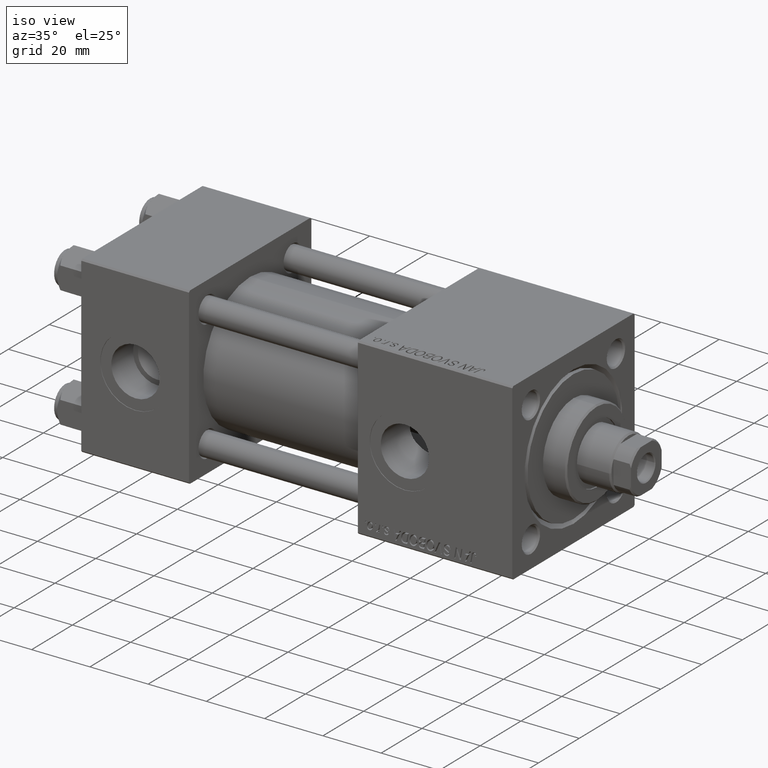
[diagram: clean part render]
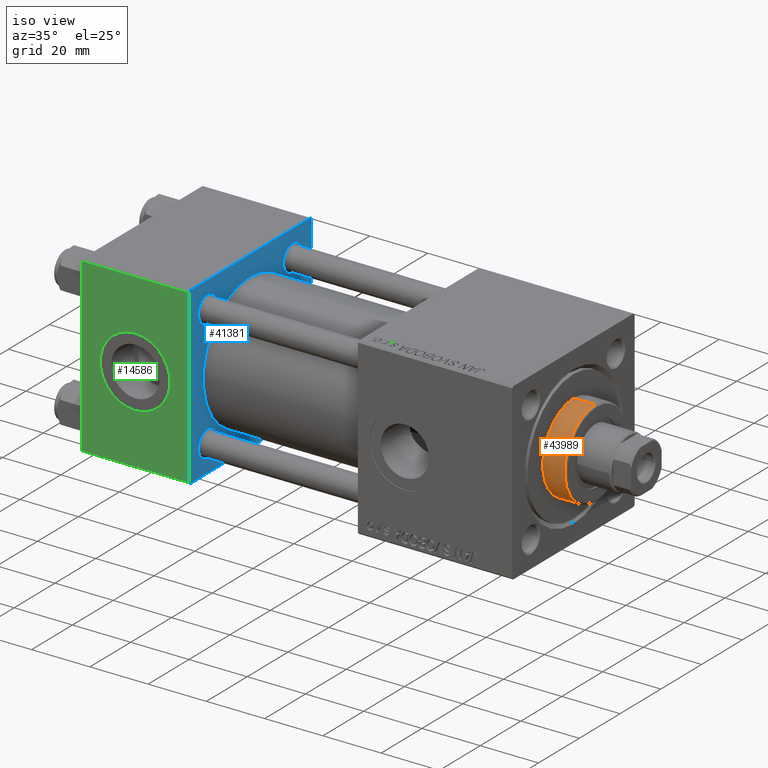
[diagram: same view with three faces highlighted in distinct colors, each labeled with its STEP entity id]
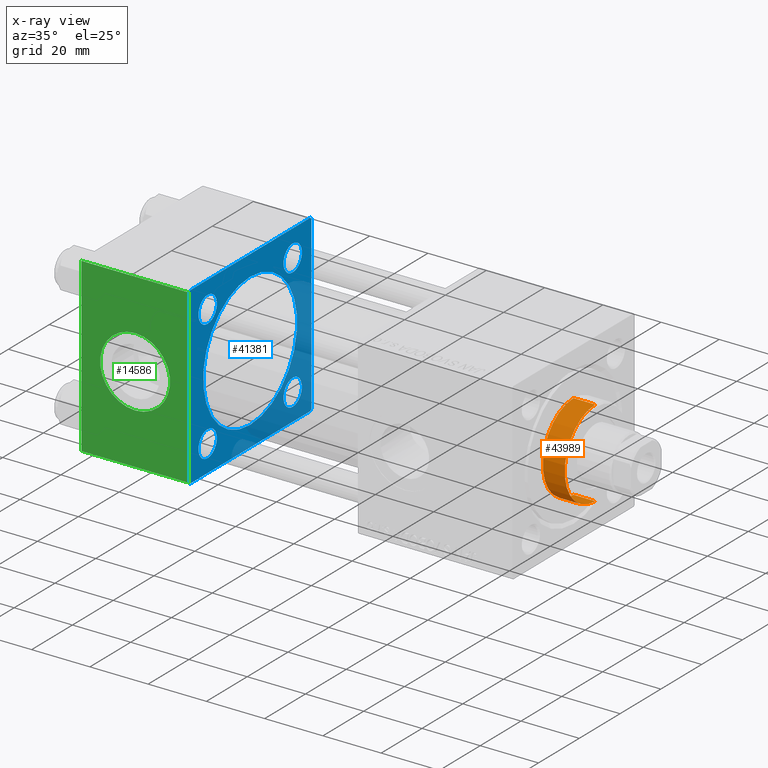
[diagram: x-ray of the same camera — body ghosted, the three highlighted faces saturated]
A machine part, iso view with three faces highlighted in distinct colors.
The next image is the same camera in x-ray (body ghosted, the three faces saturated) — at least one of them is partly hidden behind the body in this view.
Their STEP definitions:

[orange] entity #43989 — the highlighted cylindrical surface (partial cylindrical patch) has radius 15 mm, axis along (-1, -0, -0).
#5159 = ORIENTED_EDGE ( 'NONE', *, *, #34701, .T. ) ;
#5534 = DIRECTION ( 'NONE',  ( 1.000000000000000000, 0.000000000000000000, 0.000000000000000000 ) ) ;
#6461 = AXIS2_PLACEMENT_3D ( 'NONE', #26149, #22452, #5534 ) ;
#8455 = CYLINDRICAL_SURFACE ( 'NONE', #38484, 15.00000000000000000 ) ;
#8713 = CARTESIAN_POINT ( 'NONE',  ( 0.000000000000000000, 0.000000000000000000, 36.69999999999999574 ) ) ;
#9543 = CARTESIAN_POINT ( 'NONE',  ( 15.00000000000000000, 1.836970198721029589E-15, 28.69999999999999929 ) ) ;
#9994 = CARTESIAN_POINT ( 'NONE',  ( 15.00000000000000000, 1.836970198721029589E-15, 36.69999999999999574 ) ) ;
#10774 = EDGE_CURVE ( 'NONE', #49499, #18868, #15731, .T. ) ;
#12237 = VERTEX_POINT ( 'NONE', #9543 ) ;
#14642 = CARTESIAN_POINT ( 'NONE',  ( 15.00000000000000000, 1.836970198721029589E-15, 36.20000000000000284 ) ) ;
#15270 = CARTESIAN_POINT ( 'NONE',  ( -15.00000000000000000, 0.000000000000000000, 36.20000000000000284 ) ) ;
#15731 = CIRCLE ( 'NONE', #6461, 15.00000000000000000 ) ;
#18402 = AXIS2_PLACEMENT_3D ( 'NONE', #39881, #32478, #43847 ) ;
#18868 = VERTEX_POINT ( 'NONE', #15270 ) ;
#19827 = VERTEX_POINT ( 'NONE', #31088 ) ;
#22452 = DIRECTION ( 'NONE',  ( 0.000000000000000000, 0.000000000000000000, -1.000000000000000000 ) ) ;
#24162 = CARTESIAN_POINT ( 'NONE',  ( -15.00000000000000000, 0.000000000000000000, 36.69999999999999574 ) ) ;
#24311 = FACE_OUTER_BOUND ( 'NONE', #27323, .T. ) ;
#24875 = VECTOR ( 'NONE', #38258, 1000.000000000000000 ) ;
#26149 = CARTESIAN_POINT ( 'NONE',  ( 0.000000000000000000, 0.000000000000000000, 36.20000000000000284 ) ) ;
#26747 = ORIENTED_EDGE ( 'NONE', *, *, #39630, .T. ) ;
#27323 = EDGE_LOOP ( 'NONE', ( #27512, #33562, #5159, #26747 ) ) ;
#27512 = ORIENTED_EDGE ( 'NONE', *, *, #28566, .F. ) ;
#28499 = CIRCLE ( 'NONE', #18402, 15.00000000000000000 ) ;
#28566 = EDGE_CURVE ( 'NONE', #49499, #12237, #46193, .T. ) ;
#31088 = CARTESIAN_POINT ( 'NONE',  ( -15.00000000000000000, 0.000000000000000000, 28.69999999999999929 ) ) ;
#32478 = DIRECTION ( 'NONE',  ( 0.000000000000000000, 0.000000000000000000, 1.000000000000000000 ) ) ;
#33562 = ORIENTED_EDGE ( 'NONE', *, *, #10774, .T. ) ;
#34701 = EDGE_CURVE ( 'NONE', #18868, #19827, #35532, .T. ) ;
#35532 = LINE ( 'NONE', #24162, #51141 ) ;
#38258 = DIRECTION ( 'NONE',  ( -0.000000000000000000, -0.000000000000000000, -1.000000000000000000 ) ) ;
#38484 = AXIS2_PLACEMENT_3D ( 'NONE', #8713, #45186, #40680 ) ;
#39630 = EDGE_CURVE ( 'NONE', #19827, #12237, #28499, .T. ) ;
#39881 = CARTESIAN_POINT ( 'NONE',  ( 0.000000000000000000, 0.000000000000000000, 28.69999999999999929 ) ) ;
#40275 = DIRECTION ( 'NONE',  ( -0.000000000000000000, -0.000000000000000000, -1.000000000000000000 ) ) ;
#40680 = DIRECTION ( 'NONE',  ( -1.000000000000000000, 0.000000000000000000, 0.000000000000000000 ) ) ;
#43847 = DIRECTION ( 'NONE',  ( 1.000000000000000000, 0.000000000000000000, 0.000000000000000000 ) ) ;
#43989 = ADVANCED_FACE ( 'NONE', ( #24311 ), #8455, .T. ) ;
#45186 = DIRECTION ( 'NONE',  ( -0.000000000000000000, -0.000000000000000000, -1.000000000000000000 ) ) ;
#46193 = LINE ( 'NONE', #9994, #24875 ) ;
#49499 = VERTEX_POINT ( 'NONE', #14642 ) ;
#51141 = VECTOR ( 'NONE', #40275, 1000.000000000000000 ) ;

[blue] entity #41381 — the highlighted planar face has unit normal (-1, 0, 0).
#705 = AXIS2_PLACEMENT_3D ( 'NONE', #34534, #30572, #4347 ) ;
#792 = DIRECTION ( 'NONE',  ( 0.000000000000000000, -0.7071067811865474617, 0.7071067811865474617 ) ) ;
#861 = VERTEX_POINT ( 'NONE', #25249 ) ;
#1451 = EDGE_CURVE ( 'NONE', #35372, #46133, #8768, .T. ) ;
#2092 = DIRECTION ( 'NONE',  ( 0.000000000000000000, 0.000000000000000000, 1.000000000000000000 ) ) ;
#2317 = CIRCLE ( 'NONE', #45332, 4.499999999999990230 ) ;
#2363 = DIRECTION ( 'NONE',  ( -1.000000000000000000, 0.000000000000000000, -0.000000000000000000 ) ) ;
#2472 = EDGE_CURVE ( 'NONE', #51079, #31661, #4240, .T. ) ;
#2794 = FACE_BOUND ( 'NONE', #35306, .T. ) ;
#3104 = CARTESIAN_POINT ( 'NONE',  ( 37.00000000000000000, 20.84999999999999787, -20.85000000000000142 ) ) ;
#3356 = DIRECTION ( 'NONE',  ( 0.000000000000000000, 0.000000000000000000, 1.000000000000000000 ) ) ;
#3729 = VECTOR ( 'NONE', #33744, 1000.000000000000114 ) ;
#4240 = LINE ( 'NONE', #29368, #13914 ) ;
#4347 = DIRECTION ( 'NONE',  ( -0.000000000000000000, 0.000000000000000000, 1.000000000000000000 ) ) ;
#4578 = DIRECTION ( 'NONE',  ( 0.000000000000000000, 0.000000000000000000, 1.000000000000000000 ) ) ;
#4599 = ORIENTED_EDGE ( 'NONE', *, *, #6355, .T. ) ;
#4735 = DIRECTION ( 'NONE',  ( -1.000000000000000000, 0.000000000000000000, -0.000000000000000000 ) ) ;
#6250 = FACE_BOUND ( 'NONE', #46061, .T. ) ;
#6355 = EDGE_CURVE ( 'NONE', #861, #29100, #35133, .T. ) ;
#6396 = ORIENTED_EDGE ( 'NONE', *, *, #32046, .T. ) ;
#6427 = CARTESIAN_POINT ( 'NONE',  ( 37.00000000000000000, -2.602085213965210642E-15, 23.00000000000000000 ) ) ;
#6619 = CARTESIAN_POINT ( 'NONE',  ( 37.00000000000000000, 29.99999999999999289, 30.00000000000000000 ) ) ;
#6685 = ORIENTED_EDGE ( 'NONE', *, *, #40083, .T. ) ;
#7260 = LINE ( 'NONE', #40003, #8228 ) ;
#7325 = AXIS2_PLACEMENT_3D ( 'NONE', #19575, #15611, #31728 ) ;
#7370 = EDGE_CURVE ( 'NONE', #34411, #51186, #10700, .T. ) ;
#8228 = VECTOR ( 'NONE', #44508, 999.9999999999998863 ) ;
#8768 = CIRCLE ( 'NONE', #44211, 4.499999999999990230 ) ;
#8914 = EDGE_CURVE ( 'NONE', #29100, #861, #2317, .T. ) ;
#9154 = CARTESIAN_POINT ( 'NONE',  ( 37.00000000000000000, 29.99999999999999289, 29.50000000000000000 ) ) ;
#9379 = CARTESIAN_POINT ( 'NONE',  ( 37.00000000000000000, -20.84999999999999076, 20.85000000000000497 ) ) ;
#9383 = DIRECTION ( 'NONE',  ( -1.000000000000000000, 0.000000000000000000, -0.000000000000000000 ) ) ;
#9449 = ORIENTED_EDGE ( 'NONE', *, *, #12130, .T. ) ;
#10356 = EDGE_LOOP ( 'NONE', ( #46313, #11122 ) ) ;
#10448 = CARTESIAN_POINT ( 'NONE',  ( 37.00000000000000000, 20.84999999999999787, -16.35000000000001208 ) ) ;
#10700 = CIRCLE ( 'NONE', #7325, 4.499999999999990230 ) ;
#11122 = ORIENTED_EDGE ( 'NONE', *, *, #1451, .T. ) ;
#11125 = CARTESIAN_POINT ( 'NONE',  ( 37.00000000000000000, -29.49999999999998579, 29.99999999999999289 ) ) ;
#12062 = EDGE_CURVE ( 'NONE', #21166, #34025, #30168, .T. ) ;
#12130 = EDGE_CURVE ( 'NONE', #23942, #22399, #15902, .T. ) ;
#12232 = ORIENTED_EDGE ( 'NONE', *, *, #7370, .T. ) ;
#12410 = CARTESIAN_POINT ( 'NONE',  ( 37.00000000000000000, 20.84999999999999787, 16.35000000000001208 ) ) ;
#12870 = CARTESIAN_POINT ( 'NONE',  ( 37.00000000000000000, -29.50000000000001066, -30.00000000000000711 ) ) ;
#13024 = EDGE_CURVE ( 'NONE', #14418, #50597, #7260, .T. ) ;
#13045 = CARTESIAN_POINT ( 'NONE',  ( 37.00000000000000000, -20.84999999999999076, 25.34999999999999432 ) ) ;
#13411 = LINE ( 'NONE', #12870, #3729 ) ;
#13914 = VECTOR ( 'NONE', #792, 1000.000000000000114 ) ;
#14418 = VERTEX_POINT ( 'NONE', #29312 ) ;
#14591 = CARTESIAN_POINT ( 'NONE',  ( 37.00000000000000000, 2.146024240737012665E-16, -23.00000000000000000 ) ) ;
#14996 = AXIS2_PLACEMENT_3D ( 'NONE', #32807, #44958, #48930 ) ;
#15253 = EDGE_CURVE ( 'NONE', #34025, #21166, #22874, .T. ) ;
#15489 = ORIENTED_EDGE ( 'NONE', *, *, #40643, .T. ) ;
#15611 = DIRECTION ( 'NONE',  ( -1.000000000000000000, 0.000000000000000000, -0.000000000000000000 ) ) ;
#15804 = DIRECTION ( 'NONE',  ( 0.000000000000000000, -1.000000000000000000, -1.156482317317871725E-16 ) ) ;
#15855 = VECTOR ( 'NONE', #49009, 1000.000000000000000 ) ;
#15887 = VECTOR ( 'NONE', #49216, 1000.000000000000000 ) ;
#15902 = LINE ( 'NONE', #52102, #19216 ) ;
#16475 = ORIENTED_EDGE ( 'NONE', *, *, #38275, .T. ) ;
#17194 = ORIENTED_EDGE ( 'NONE', *, *, #12062, .F. ) ;
#17300 = DIRECTION ( 'NONE',  ( -1.000000000000000000, 0.000000000000000000, -0.000000000000000000 ) ) ;
#17371 = AXIS2_PLACEMENT_3D ( 'NONE', #33016, #4735, #37238 ) ;
#19216 = VECTOR ( 'NONE', #48662, 1000.000000000000114 ) ;
#19238 = DIRECTION ( 'NONE',  ( -1.000000000000000000, 0.000000000000000000, -0.000000000000000000 ) ) ;
#19454 = VERTEX_POINT ( 'NONE', #41992 ) ;
#19575 = CARTESIAN_POINT ( 'NONE',  ( 37.00000000000000000, 20.84999999999999787, -20.85000000000000142 ) ) ;
#20520 = CARTESIAN_POINT ( 'NONE',  ( 37.00000000000000000, 20.84999999999999787, -25.34999999999999076 ) ) ;
#20696 = CARTESIAN_POINT ( 'NONE',  ( 37.00000000000000000, -29.50000000000000000, -30.00000000000000711 ) ) ;
#21098 = CARTESIAN_POINT ( 'NONE',  ( 37.00000000000000000, -20.84999999999999076, -20.85000000000000497 ) ) ;
#21166 = VERTEX_POINT ( 'NONE', #14591 ) ;
#21890 = DIRECTION ( 'NONE',  ( 0.000000000000000000, 0.000000000000000000, 1.000000000000000000 ) ) ;
#22382 = FACE_OUTER_BOUND ( 'NONE', #41667, .T. ) ;
#22399 = VERTEX_POINT ( 'NONE', #30114 ) ;
#22874 = CIRCLE ( 'NONE', #30454, 23.00000000000000000 ) ;
#23114 = ORIENTED_EDGE ( 'NONE', *, *, #35463, .T. ) ;
#23483 = CIRCLE ( 'NONE', #30251, 4.499999999999990230 ) ;
#23540 = EDGE_CURVE ( 'NONE', #14418, #36841, #27702, .T. ) ;
#23942 = VERTEX_POINT ( 'NONE', #11125 ) ;
#24900 = CARTESIAN_POINT ( 'NONE',  ( 37.00000000000000000, 29.99999999999999289, 30.00000000000000000 ) ) ;
#25228 = LINE ( 'NONE', #45575, #15855 ) ;
#25249 = CARTESIAN_POINT ( 'NONE',  ( 37.00000000000000000, -20.84999999999999076, 16.35000000000001208 ) ) ;
#25506 = DIRECTION ( 'NONE',  ( 0.000000000000000000, 0.000000000000000000, 1.000000000000000000 ) ) ;
#25687 = EDGE_CURVE ( 'NONE', #46133, #35372, #30672, .T. ) ;
#26961 = CARTESIAN_POINT ( 'NONE',  ( 37.00000000000000000, 29.99999999999999289, -29.50000000000000000 ) ) ;
#27295 = AXIS2_PLACEMENT_3D ( 'NONE', #37797, #49950, #39278 ) ;
#27475 = CIRCLE ( 'NONE', #17371, 4.499999999999990230 ) ;
#27702 = LINE ( 'NONE', #36657, #50006 ) ;
#28221 = ORIENTED_EDGE ( 'NONE', *, *, #2472, .T. ) ;
#29100 = VERTEX_POINT ( 'NONE', #13045 ) ;
#29312 = CARTESIAN_POINT ( 'NONE',  ( 37.00000000000000000, 29.49999999999997868, -30.00000000000000000 ) ) ;
#29368 = CARTESIAN_POINT ( 'NONE',  ( 37.00000000000000000, 29.49999999999999289, 30.00000000000000000 ) ) ;
#29712 = CARTESIAN_POINT ( 'NONE',  ( 37.00000000000000000, -20.84999999999999076, -25.34999999999999432 ) ) ;
#30114 = CARTESIAN_POINT ( 'NONE',  ( 37.00000000000000000, -30.00000000000000000, 29.49999999999999289 ) ) ;
#30168 = CIRCLE ( 'NONE', #14996, 23.00000000000000000 ) ;
#30251 = AXIS2_PLACEMENT_3D ( 'NONE', #3104, #19238, #3356 ) ;
#30454 = AXIS2_PLACEMENT_3D ( 'NONE', #39988, #52158, #4578 ) ;
#30572 = DIRECTION ( 'NONE',  ( -1.000000000000000000, 0.000000000000000000, -0.000000000000000000 ) ) ;
#30672 = CIRCLE ( 'NONE', #27295, 4.499999999999990230 ) ;
#31112 = ORIENTED_EDGE ( 'NONE', *, *, #13024, .T. ) ;
#31227 = ORIENTED_EDGE ( 'NONE', *, *, #23540, .F. ) ;
#31661 = VERTEX_POINT ( 'NONE', #48608 ) ;
#31728 = DIRECTION ( 'NONE',  ( 0.000000000000000000, 0.000000000000000000, 1.000000000000000000 ) ) ;
#32046 = EDGE_CURVE ( 'NONE', #19454, #36841, #13411, .T. ) ;
#32126 = EDGE_LOOP ( 'NONE', ( #47870, #23114 ) ) ;
#32807 = CARTESIAN_POINT ( 'NONE',  ( 37.00000000000000000, -2.602085213965210642E-15, 0.000000000000000000 ) ) ;
#33016 = CARTESIAN_POINT ( 'NONE',  ( 37.00000000000000000, 20.84999999999999787, 20.85000000000000142 ) ) ;
#33139 = EDGE_CURVE ( 'NONE', #35536, #50976, #47655, .T. ) ;
#33349 = LINE ( 'NONE', #24900, #15887 ) ;
#33744 = DIRECTION ( 'NONE',  ( 0.000000000000000000, 0.7071067811865474617, -0.7071067811865474617 ) ) ;
#34025 = VERTEX_POINT ( 'NONE', #6427 ) ;
#34218 = EDGE_LOOP ( 'NONE', ( #12232, #6685 ) ) ;
#34411 = VERTEX_POINT ( 'NONE', #20520 ) ;
#34534 = CARTESIAN_POINT ( 'NONE',  ( 37.00000000000000000, 0.000000000000000000, 0.000000000000000000 ) ) ;
#34610 = CARTESIAN_POINT ( 'NONE',  ( 37.00000000000000000, -20.84999999999999076, 20.85000000000000497 ) ) ;
#34785 = FACE_BOUND ( 'NONE', #34218, .T. ) ;
#35133 = CIRCLE ( 'NONE', #45252, 4.499999999999990230 ) ;
#35207 = VECTOR ( 'NONE', #50757, 1000.000000000000000 ) ;
#35306 = EDGE_LOOP ( 'NONE', ( #4599, #49742 ) ) ;
#35372 = VERTEX_POINT ( 'NONE', #52049 ) ;
#35463 = EDGE_CURVE ( 'NONE', #50976, #35536, #27475, .T. ) ;
#35536 = VERTEX_POINT ( 'NONE', #12410 ) ;
#35648 = LINE ( 'NONE', #6619, #35207 ) ;
#36657 = CARTESIAN_POINT ( 'NONE',  ( 37.00000000000000000, 29.99999999999999289, -30.00000000000000000 ) ) ;
#36841 = VERTEX_POINT ( 'NONE', #20696 ) ;
#37238 = DIRECTION ( 'NONE',  ( 0.000000000000000000, 0.000000000000000000, 1.000000000000000000 ) ) ;
#37458 = ORIENTED_EDGE ( 'NONE', *, *, #15253, .F. ) ;
#37797 = CARTESIAN_POINT ( 'NONE',  ( 37.00000000000000000, -20.84999999999999076, -20.85000000000000497 ) ) ;
#38275 = EDGE_CURVE ( 'NONE', #31661, #23942, #35648, .T. ) ;
#38782 = CARTESIAN_POINT ( 'NONE',  ( 37.00000000000000000, 20.84999999999999787, 25.34999999999999076 ) ) ;
#39278 = DIRECTION ( 'NONE',  ( 0.000000000000000000, 0.000000000000000000, 1.000000000000000000 ) ) ;
#39988 = CARTESIAN_POINT ( 'NONE',  ( 37.00000000000000000, -2.602085213965210642E-15, 0.000000000000000000 ) ) ;
#40003 = CARTESIAN_POINT ( 'NONE',  ( 37.00000000000000000, 29.99999999999999289, -29.50000000000000000 ) ) ;
#40083 = EDGE_CURVE ( 'NONE', #51186, #34411, #23483, .T. ) ;
#40643 = EDGE_CURVE ( 'NONE', #22399, #19454, #25228, .T. ) ;
#41381 = ADVANCED_FACE ( 'NONE', ( #42444, #34785, #2794, #46681, #6250, #22382 ), #50906, .F. ) ;
#41667 = EDGE_LOOP ( 'NONE', ( #31227, #31112, #52074, #28221, #16475, #9449, #15489, #6396 ) ) ;
#41840 = EDGE_CURVE ( 'NONE', #51079, #50597, #33349, .T. ) ;
#41992 = CARTESIAN_POINT ( 'NONE',  ( 37.00000000000000000, -30.00000000000000000, -29.50000000000001776 ) ) ;
#42444 = FACE_BOUND ( 'NONE', #10356, .T. ) ;
#44211 = AXIS2_PLACEMENT_3D ( 'NONE', #21098, #45915, #21890 ) ;
#44508 = DIRECTION ( 'NONE',  ( -0.000000000000000000, 0.7071067811865574537, 0.7071067811865376918 ) ) ;
#44958 = DIRECTION ( 'NONE',  ( 1.000000000000000000, -0.000000000000000000, 0.000000000000000000 ) ) ;
#45252 = AXIS2_PLACEMENT_3D ( 'NONE', #34610, #2363, #2092 ) ;
#45321 = DIRECTION ( 'NONE',  ( 0.000000000000000000, 0.000000000000000000, 1.000000000000000000 ) ) ;
#45332 = AXIS2_PLACEMENT_3D ( 'NONE', #9379, #17300, #45321 ) ;
#45575 = CARTESIAN_POINT ( 'NONE',  ( 37.00000000000000000, -30.00000000000000000, 29.99999999999999289 ) ) ;
#45915 = DIRECTION ( 'NONE',  ( -1.000000000000000000, 0.000000000000000000, -0.000000000000000000 ) ) ;
#46061 = EDGE_LOOP ( 'NONE', ( #37458, #17194 ) ) ;
#46133 = VERTEX_POINT ( 'NONE', #29712 ) ;
#46313 = ORIENTED_EDGE ( 'NONE', *, *, #25687, .T. ) ;
#46681 = FACE_BOUND ( 'NONE', #32126, .T. ) ;
#47655 = CIRCLE ( 'NONE', #51868, 4.499999999999990230 ) ;
#47870 = ORIENTED_EDGE ( 'NONE', *, *, #33139, .T. ) ;
#48608 = CARTESIAN_POINT ( 'NONE',  ( 37.00000000000000000, 29.49999999999999289, 30.00000000000000000 ) ) ;
#48662 = DIRECTION ( 'NONE',  ( -0.000000000000000000, -0.7071067811865474617, -0.7071067811865474617 ) ) ;
#48930 = DIRECTION ( 'NONE',  ( 0.000000000000000000, 0.000000000000000000, 1.000000000000000000 ) ) ;
#49009 = DIRECTION ( 'NONE',  ( 0.000000000000000000, 0.000000000000000000, -1.000000000000000000 ) ) ;
#49027 = CARTESIAN_POINT ( 'NONE',  ( 37.00000000000000000, 20.84999999999999787, 20.85000000000000142 ) ) ;
#49216 = DIRECTION ( 'NONE',  ( 0.000000000000000000, 0.000000000000000000, -1.000000000000000000 ) ) ;
#49742 = ORIENTED_EDGE ( 'NONE', *, *, #8914, .T. ) ;
#49950 = DIRECTION ( 'NONE',  ( -1.000000000000000000, 0.000000000000000000, -0.000000000000000000 ) ) ;
#50006 = VECTOR ( 'NONE', #15804, 1000.000000000000000 ) ;
#50597 = VERTEX_POINT ( 'NONE', #26961 ) ;
#50757 = DIRECTION ( 'NONE',  ( 0.000000000000000000, -1.000000000000000000, -1.156482317317871725E-16 ) ) ;
#50906 = PLANE ( 'NONE',  #705 ) ;
#50976 = VERTEX_POINT ( 'NONE', #38782 ) ;
#51079 = VERTEX_POINT ( 'NONE', #9154 ) ;
#51186 = VERTEX_POINT ( 'NONE', #10448 ) ;
#51868 = AXIS2_PLACEMENT_3D ( 'NONE', #49027, #9383, #25506 ) ;
#52049 = CARTESIAN_POINT ( 'NONE',  ( 37.00000000000000000, -20.84999999999999076, -16.35000000000001208 ) ) ;
#52074 = ORIENTED_EDGE ( 'NONE', *, *, #41840, .F. ) ;
#52102 = CARTESIAN_POINT ( 'NONE',  ( 37.00000000000000000, -30.00000000000000000, 29.49999999999999289 ) ) ;
#52158 = DIRECTION ( 'NONE',  ( 1.000000000000000000, -0.000000000000000000, 0.000000000000000000 ) ) ;

[green] entity #14586 — the highlighted planar face has unit normal (0, 1, 0).
#695 = AXIS2_PLACEMENT_3D ( 'NONE', #29369, #32514, #33048 ) ;
#836 = VERTEX_POINT ( 'NONE', #44261 ) ;
#1566 = CARTESIAN_POINT ( 'NONE',  ( 0.000000000000000000, -30.00000000000000000, 29.49999999999999289 ) ) ;
#1769 = LINE ( 'NONE', #30326, #13191 ) ;
#3786 = CARTESIAN_POINT ( 'NONE',  ( 0.000000000000000000, -30.00000000000000000, 29.99999999999999289 ) ) ;
#5014 = CIRCLE ( 'NONE', #14316, 12.00000000000000178 ) ;
#6408 = VERTEX_POINT ( 'NONE', #1566 ) ;
#6761 = EDGE_CURVE ( 'NONE', #22399, #6408, #1769, .T. ) ;
#7633 = FACE_BOUND ( 'NONE', #36214, .T. ) ;
#8852 = EDGE_CURVE ( 'NONE', #836, #19454, #42475, .T. ) ;
#8993 = VERTEX_POINT ( 'NONE', #46984 ) ;
#9992 = CARTESIAN_POINT ( 'NONE',  ( 37.00000000000000000, -30.00000000000000000, -29.50000000000001776 ) ) ;
#10099 = VERTEX_POINT ( 'NONE', #16367 ) ;
#10152 = AXIS2_PLACEMENT_3D ( 'NONE', #35134, #11605, #46780 ) ;
#10576 = PLANE ( 'NONE',  #10152 ) ;
#11605 = DIRECTION ( 'NONE',  ( -0.000000000000000000, 1.000000000000000000, 0.000000000000000000 ) ) ;
#13191 = VECTOR ( 'NONE', #42197, 1000.000000000000000 ) ;
#14316 = AXIS2_PLACEMENT_3D ( 'NONE', #35524, #22627, #38731 ) ;
#14586 = ADVANCED_FACE ( 'NONE', ( #7633, #47808 ), #10576, .F. ) ;
#15274 = EDGE_CURVE ( 'NONE', #6408, #836, #19657, .T. ) ;
#15855 = VECTOR ( 'NONE', #49009, 1000.000000000000000 ) ;
#15957 = DIRECTION ( 'NONE',  ( 0.000000000000000000, 0.000000000000000000, -1.000000000000000000 ) ) ;
#16367 = CARTESIAN_POINT ( 'NONE',  ( 18.50000000000000000, -30.00000000000000000, -12.00000000000000178 ) ) ;
#19127 = ORIENTED_EDGE ( 'NONE', *, *, #8852, .T. ) ;
#19282 = CIRCLE ( 'NONE', #695, 12.00000000000000178 ) ;
#19454 = VERTEX_POINT ( 'NONE', #41992 ) ;
#19657 = LINE ( 'NONE', #3786, #45647 ) ;
#22399 = VERTEX_POINT ( 'NONE', #30114 ) ;
#22627 = DIRECTION ( 'NONE',  ( 0.000000000000000000, -1.000000000000000000, -8.673617379884036705E-17 ) ) ;
#25228 = LINE ( 'NONE', #45575, #15855 ) ;
#26109 = DIRECTION ( 'NONE',  ( 1.000000000000000000, 0.000000000000000000, 0.000000000000000000 ) ) ;
#29369 = CARTESIAN_POINT ( 'NONE',  ( 18.50000000000000000, -30.00000000000000000, 0.000000000000000000 ) ) ;
#30114 = CARTESIAN_POINT ( 'NONE',  ( 37.00000000000000000, -30.00000000000000000, 29.49999999999999289 ) ) ;
#30326 = CARTESIAN_POINT ( 'NONE',  ( 37.00000000000000000, -30.00000000000000000, 29.49999999999999289 ) ) ;
#32514 = DIRECTION ( 'NONE',  ( 0.000000000000000000, -1.000000000000000000, -8.673617379884036705E-17 ) ) ;
#32599 = ORIENTED_EDGE ( 'NONE', *, *, #50405, .F. ) ;
#33048 = DIRECTION ( 'NONE',  ( 0.000000000000000000, 0.000000000000000000, -1.000000000000000000 ) ) ;
#35134 = CARTESIAN_POINT ( 'NONE',  ( 37.00000000000000000, -30.00000000000000000, 29.99999999999999289 ) ) ;
#35524 = CARTESIAN_POINT ( 'NONE',  ( 18.50000000000000000, -30.00000000000000000, 0.000000000000000000 ) ) ;
#36214 = EDGE_LOOP ( 'NONE', ( #44068, #32599 ) ) ;
#37198 = ORIENTED_EDGE ( 'NONE', *, *, #15274, .T. ) ;
#38731 = DIRECTION ( 'NONE',  ( 0.000000000000000000, 0.000000000000000000, -1.000000000000000000 ) ) ;
#40643 = EDGE_CURVE ( 'NONE', #22399, #19454, #25228, .T. ) ;
#41344 = EDGE_LOOP ( 'NONE', ( #37198, #19127, #43547, #49252 ) ) ;
#41992 = CARTESIAN_POINT ( 'NONE',  ( 37.00000000000000000, -30.00000000000000000, -29.50000000000001776 ) ) ;
#42197 = DIRECTION ( 'NONE',  ( -1.000000000000000000, 0.000000000000000000, 0.000000000000000000 ) ) ;
#42475 = LINE ( 'NONE', #9992, #43644 ) ;
#43547 = ORIENTED_EDGE ( 'NONE', *, *, #40643, .F. ) ;
#43644 = VECTOR ( 'NONE', #26109, 1000.000000000000000 ) ;
#44068 = ORIENTED_EDGE ( 'NONE', *, *, #52095, .F. ) ;
#44261 = CARTESIAN_POINT ( 'NONE',  ( 0.000000000000000000, -30.00000000000000000, -29.50000000000001776 ) ) ;
#45575 = CARTESIAN_POINT ( 'NONE',  ( 37.00000000000000000, -30.00000000000000000, 29.99999999999999289 ) ) ;
#45647 = VECTOR ( 'NONE', #15957, 1000.000000000000000 ) ;
#46780 = DIRECTION ( 'NONE',  ( 0.000000000000000000, -0.000000000000000000, 1.000000000000000000 ) ) ;
#46984 = CARTESIAN_POINT ( 'NONE',  ( 18.50000000000000000, -30.00000000000000000, 12.00000000000000178 ) ) ;
#47808 = FACE_OUTER_BOUND ( 'NONE', #41344, .T. ) ;
#49009 = DIRECTION ( 'NONE',  ( 0.000000000000000000, 0.000000000000000000, -1.000000000000000000 ) ) ;
#49252 = ORIENTED_EDGE ( 'NONE', *, *, #6761, .T. ) ;
#50405 = EDGE_CURVE ( 'NONE', #8993, #10099, #19282, .T. ) ;
#52095 = EDGE_CURVE ( 'NONE', #10099, #8993, #5014, .T. ) ;